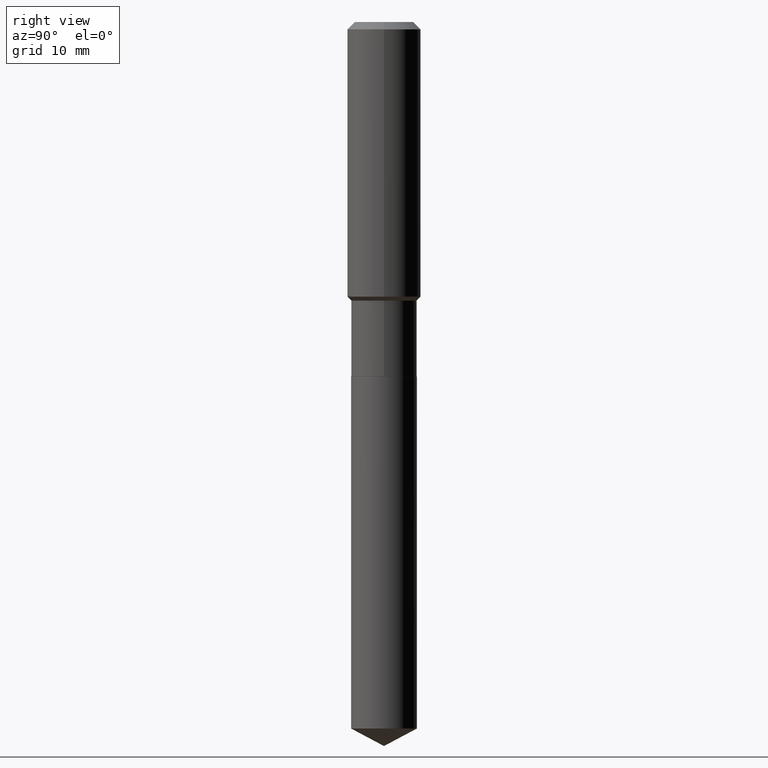
[diagram: clean part render]
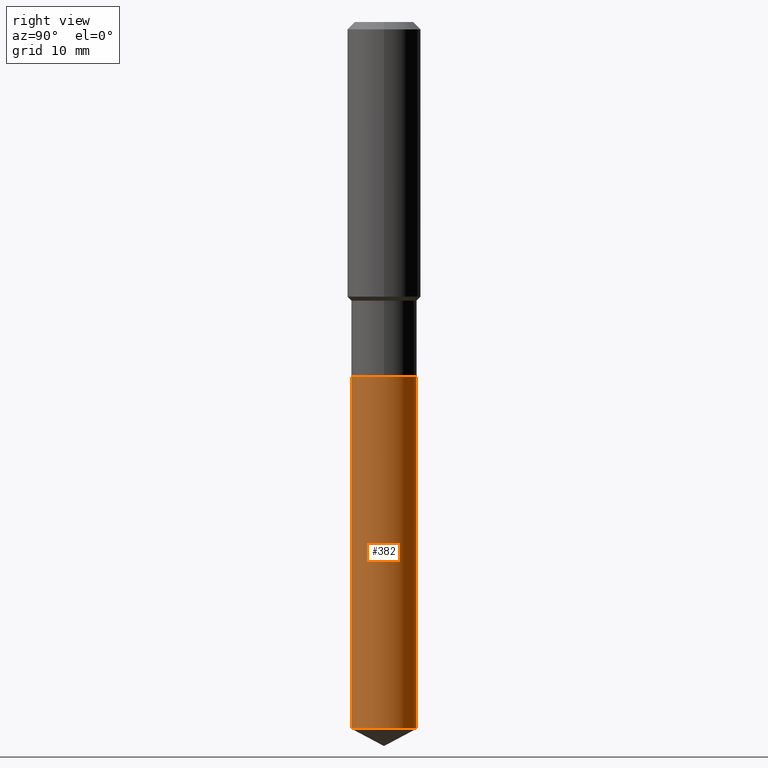
[diagram: same view with one face highlighted and labeled with its STEP entity id]
A machine part, right view. The second image highlights one B-rep face of the part: STEP entity #382.
In plain terms, the highlighted cylindrical surface (edge-blend (fillet) strip) has radius 5.3581 mm, axis along (-0, 0, 1).
Its self-contained STEP definition (entity closure, byte-faithful):
#5 = EDGE_CURVE ( 'NONE', #267, #258, #435, .T. ) ;
#9 = DIRECTION ( 'NONE',  ( -6.982962677686265922E-15, -1.000000000000000000, 2.590043132177542855E-15 ) ) ;
#22 = CYLINDRICAL_SURFACE ( 'NONE', #331, 0.2109499999999999986 ) ;
#35 = ORIENTED_EDGE ( 'NONE', *, *, #249, .T. ) ;
#116 = CARTESIAN_POINT ( 'NONE',  ( 1.498889901085986750E-15, 0.2109499999999920883, -2.272900000000001253 ) ) ;
#144 = VERTEX_POINT ( 'NONE', #306 ) ;
#148 = CIRCLE ( 'NONE', #212, 0.2109499999999999986 ) ;
#164 = DIRECTION ( 'NONE',  ( -2.445577934825511206E-29, 3.491325060418912334E-15, 1.000000000000000000 ) ) ;
#168 = ORIENTED_EDGE ( 'NONE', *, *, #5, .F. ) ;
#197 = CARTESIAN_POINT ( 'NONE',  ( 5.558306049578197337E-29, -7.935787935056587256E-15, -2.272900000000000365 ) ) ;
#204 = FACE_OUTER_BOUND ( 'NONE', #372, .T. ) ;
#212 = AXIS2_PLACEMENT_3D ( 'NONE', #322, #316, #9 ) ;
#217 = CARTESIAN_POINT ( 'NONE',  ( 1.498889901086042364E-15, 0.2109499999999842335, -4.533835895391012727 ) ) ;
#219 = ORIENTED_EDGE ( 'NONE', *, *, #312, .F. ) ;
#243 = CARTESIAN_POINT ( 'NONE',  ( 5.558306049578197337E-29, -7.935787935056587256E-15, -2.272900000000000365 ) ) ;
#248 = VECTOR ( 'NONE', #428, 39.37007874015748143 ) ;
#249 = EDGE_CURVE ( 'NONE', #268, #258, #463, .T. ) ;
#258 = VERTEX_POINT ( 'NONE', #353 ) ;
#267 = VERTEX_POINT ( 'NONE', #404 ) ;
#268 = VERTEX_POINT ( 'NONE', #217 ) ;
#275 = DIRECTION ( 'NONE',  ( -2.445577934825511487E-29, 3.491325060418912334E-15, 1.000000000000000000 ) ) ;
#278 = ORIENTED_EDGE ( 'NONE', *, *, #324, .T. ) ;
#283 = LINE ( 'NONE', #357, #313 ) ;
#306 = CARTESIAN_POINT ( 'NONE',  ( -1.473055976857807322E-15, -0.2109500000000158471, -4.533835895391010951 ) ) ;
#312 = EDGE_CURVE ( 'NONE', #144, #267, #283, .T. ) ;
#313 = VECTOR ( 'NONE', #164, 39.37007874015748143 ) ;
#316 = DIRECTION ( 'NONE',  ( -2.445577934825511487E-29, 3.491325060418912334E-15, 1.000000000000000000 ) ) ;
#322 = CARTESIAN_POINT ( 'NONE',  ( 1.108760098740141492E-28, -1.582945008663589642E-14, -4.533835895391011839 ) ) ;
#324 = EDGE_CURVE ( 'NONE', #144, #268, #148, .T. ) ;
#331 = AXIS2_PLACEMENT_3D ( 'NONE', #197, #362, #465 ) ;
#346 = AXIS2_PLACEMENT_3D ( 'NONE', #243, #275, #473 ) ;
#353 = CARTESIAN_POINT ( 'NONE',  ( 1.498889901086042759E-15, 0.2109499999999921160, -2.272900000000001253 ) ) ;
#357 = CARTESIAN_POINT ( 'NONE',  ( -1.473055976857862148E-15, -0.2109500000000079367, -2.272899999999999476 ) ) ;
#362 = DIRECTION ( 'NONE',  ( -2.445577934825511487E-29, 3.491325060418912334E-15, 1.000000000000000000 ) ) ;
#372 = EDGE_LOOP ( 'NONE', ( #278, #35, #168, #219 ) ) ;
#382 = ADVANCED_FACE ( 'NONE', ( #204 ), #22, .T. ) ;
#404 = CARTESIAN_POINT ( 'NONE',  ( -1.473055976857862148E-15, -0.2109500000000079367, -2.272899999999999476 ) ) ;
#428 = DIRECTION ( 'NONE',  ( -2.445577934825511206E-29, 3.491325060418912334E-15, 1.000000000000000000 ) ) ;
#435 = CIRCLE ( 'NONE', #346, 0.2109499999999999986 ) ;
#463 = LINE ( 'NONE', #116, #248 ) ;
#465 = DIRECTION ( 'NONE',  ( -6.982962677686265922E-15, -1.000000000000000000, 3.885064698266314085E-15 ) ) ;
#473 = DIRECTION ( 'NONE',  ( -6.982962677686265922E-15, -1.000000000000000000, 3.885064698266314085E-15 ) ) ;